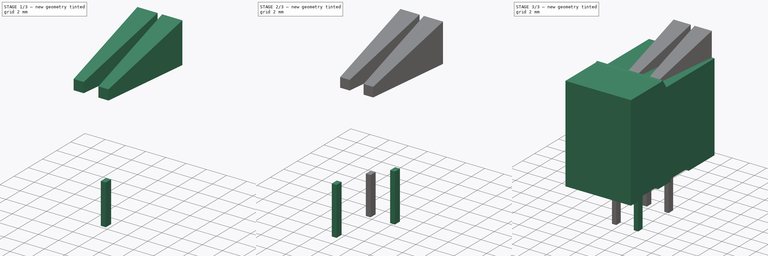
[diagram: build sequence overview — one tinted view per stage of 3, left to right]
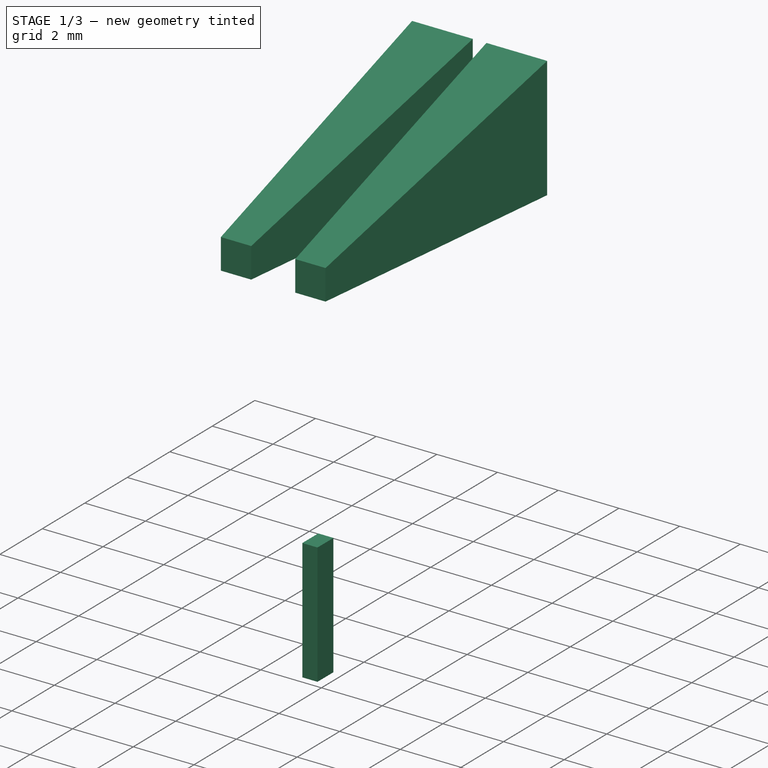
[diagram: stage 1 of 3 — iso view after this stage's code; geometry added in this stage tinted green]
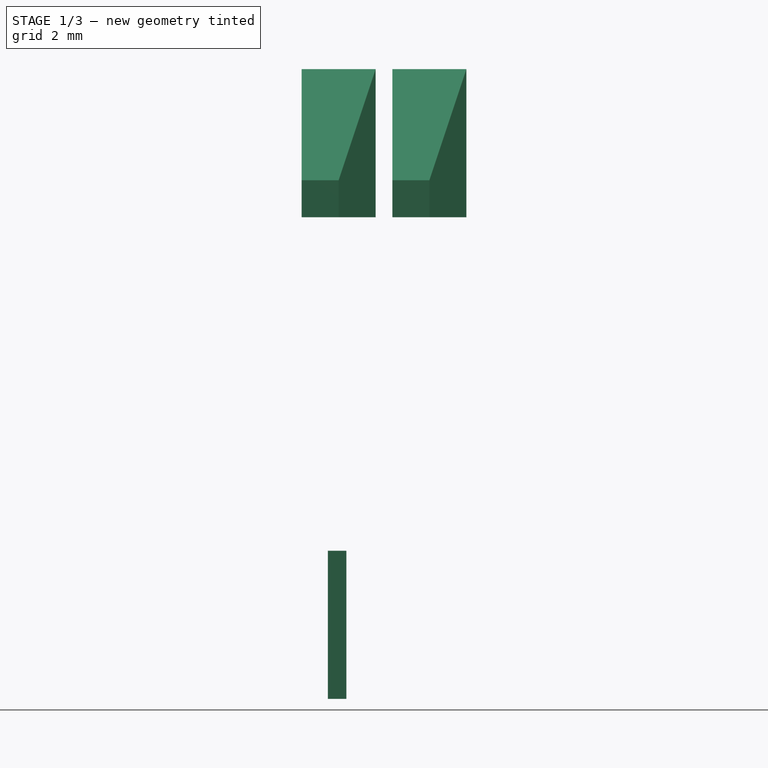
[diagram: stage 1 of 3 — front view after this stage's code; geometry added in this stage tinted green]
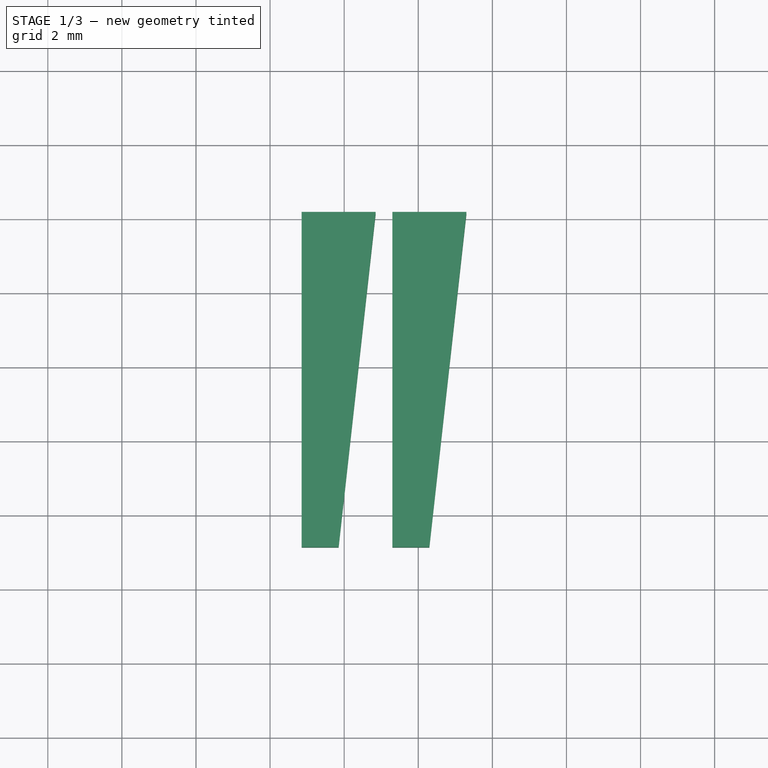
[diagram: stage 1 of 3 — top view after this stage's code; geometry added in this stage tinted green]
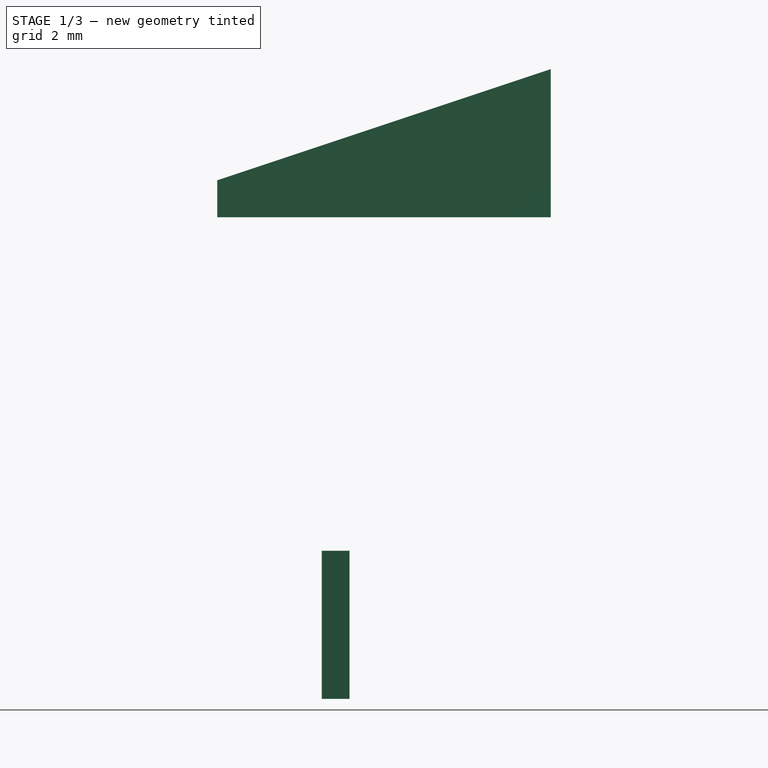
[diagram: stage 1 of 3 — right view after this stage's code; geometry added in this stage tinted green]
FCSTD DOCUMENT  (FreeCAD 0.19R24366 (Git))
Label: Ninigi_AC141R-02P-2.54
License: All rights reserved
LicenseURL: http://en.wikipedia.org/wiki/All_rights_reserved
objects: Part::Box×4, Sketcher::SketchObject×2, Part::Wedge×2, PartDesign::Pad×1, PartDesign::Pocket×1, PartDesign::Body×1
note: 13 computed .brp shape members not serialized (recipe doc carries the construction recipe); baked Part::Feature solids carry a one-line shape summary decoded from their .brp

FEATURE [Part::Box] Box003  label="Kocka003"
  AttacherType = Attacher::AttachEngine3D
  Height = 4
  Length = 0.5
  Placement = pos=(3.56,7.73,-4) rot=(0,0,1;0rad)
  Width = 0.75
FEATURE [Part::Wedge] Wedge  label="Ék"
  AttacherType = Attacher::AttachEngine3D
  Placement = pos=(7.3,13.91,9) rot=(0,0,1;3.14159rad)
  X2max = 2
  X2min = 1
  Xmax = 2
  Xmin = 0
  Ymax = 9
  Ymin = 0
  Z2max = 1
  Z2min = 0
  Zmax = 4
  Zmin = 0
FEATURE [Part::Wedge] Wedge001  label="Ék001"
  AttacherType = Attacher::AttachEngine3D
  Placement = pos=(4.85,13.91,9) rot=(0,0,1;3.14159rad)
  X2max = 2
  X2min = 1
  Xmax = 2
  Xmin = 0
  Ymax = 9
  Ymin = 0
  Z2max = 1
  Z2min = 0
  Zmax = 4
  Zmin = 0
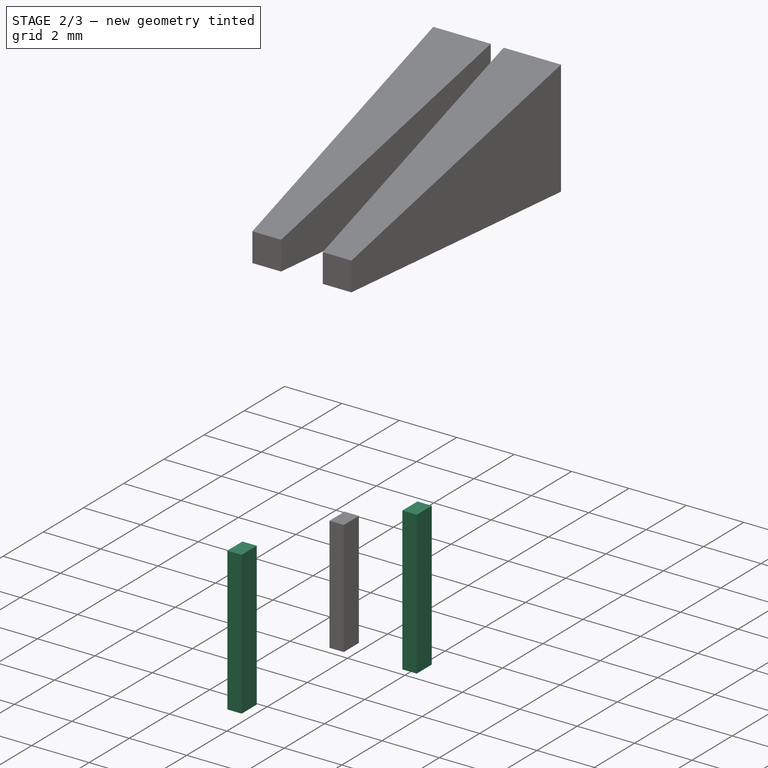
[diagram: stage 2 of 3 — iso view after this stage's code; geometry added in this stage tinted green]
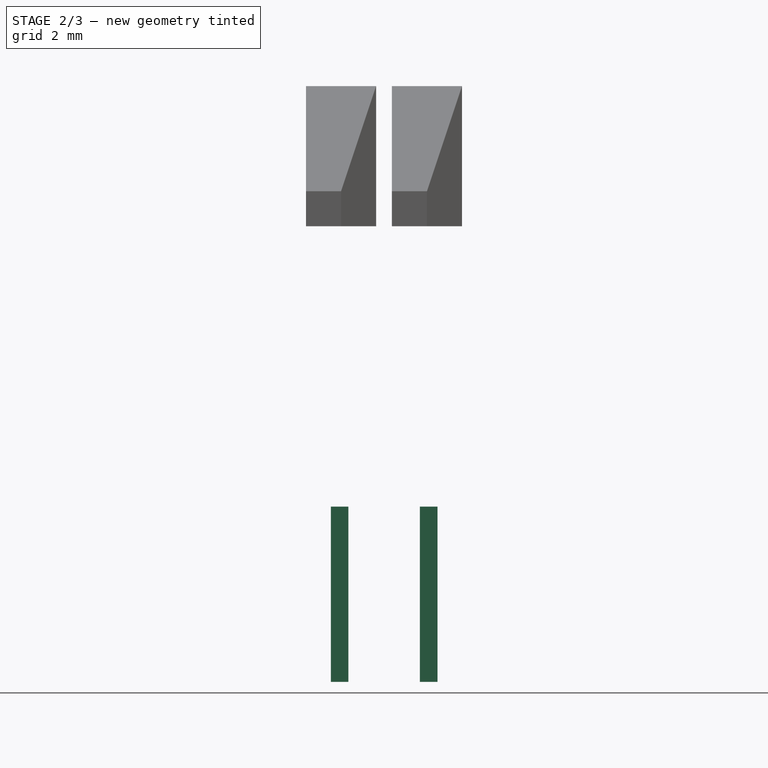
[diagram: stage 2 of 3 — front view after this stage's code; geometry added in this stage tinted green]
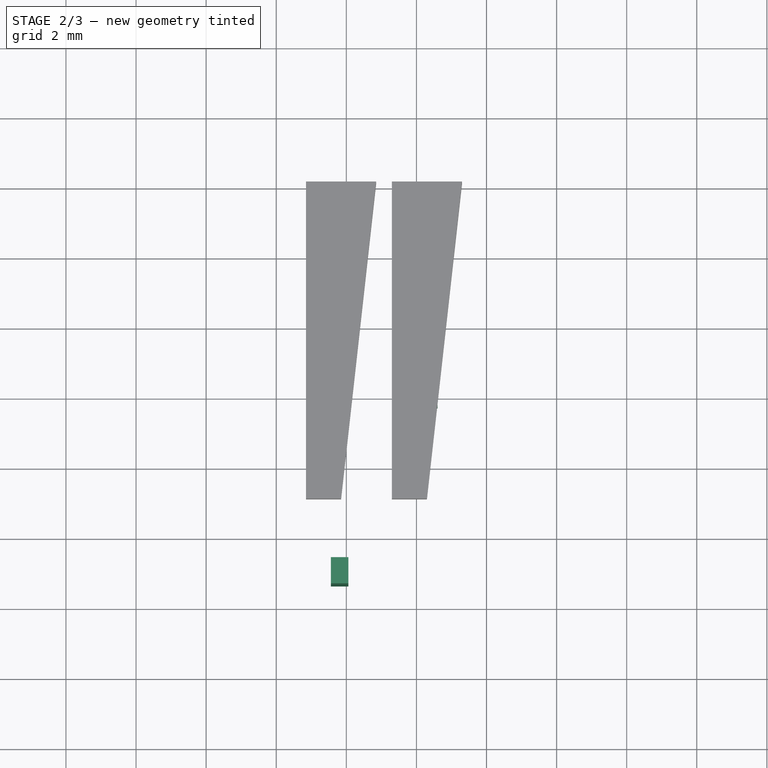
[diagram: stage 2 of 3 — top view after this stage's code; geometry added in this stage tinted green]
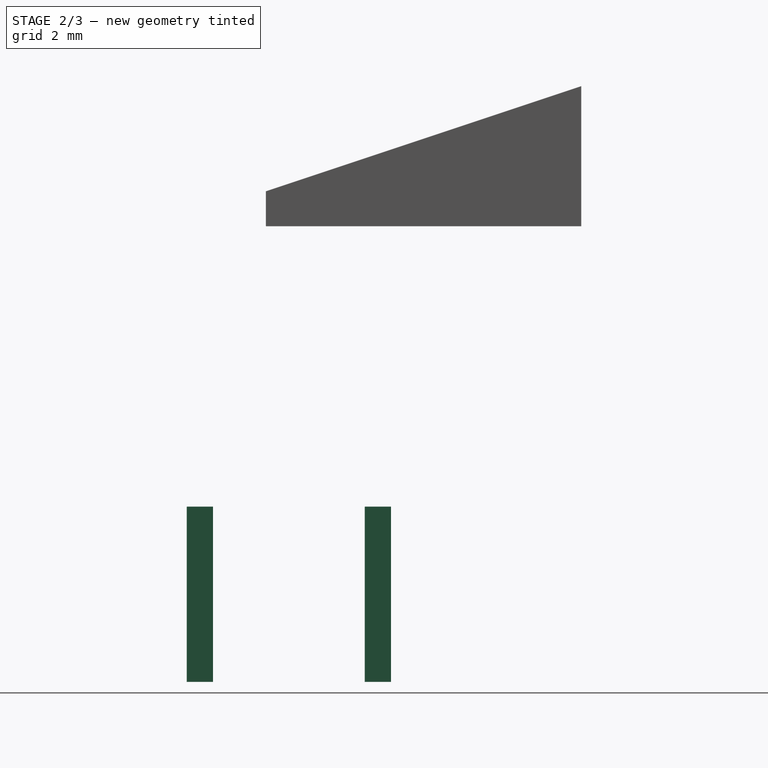
[diagram: stage 2 of 3 — right view after this stage's code; geometry added in this stage tinted green]
FEATURE [Part::Box] Box001  label="Kocka001"
  AttacherType = Attacher::AttachEngine3D
  Height = 5
  Length = 0.5
  Placement = pos=(3.56,2.65,-4) rot=(0,0,1;0rad)
  Width = 0.75
FEATURE [Part::Box] Box002  label="Kocka002"
  AttacherType = Attacher::AttachEngine3D
  Height = 5
  Length = 0.5
  Placement = pos=(6.1,7.73,-4) rot=(0,0,1;0rad)
  Width = 0.75
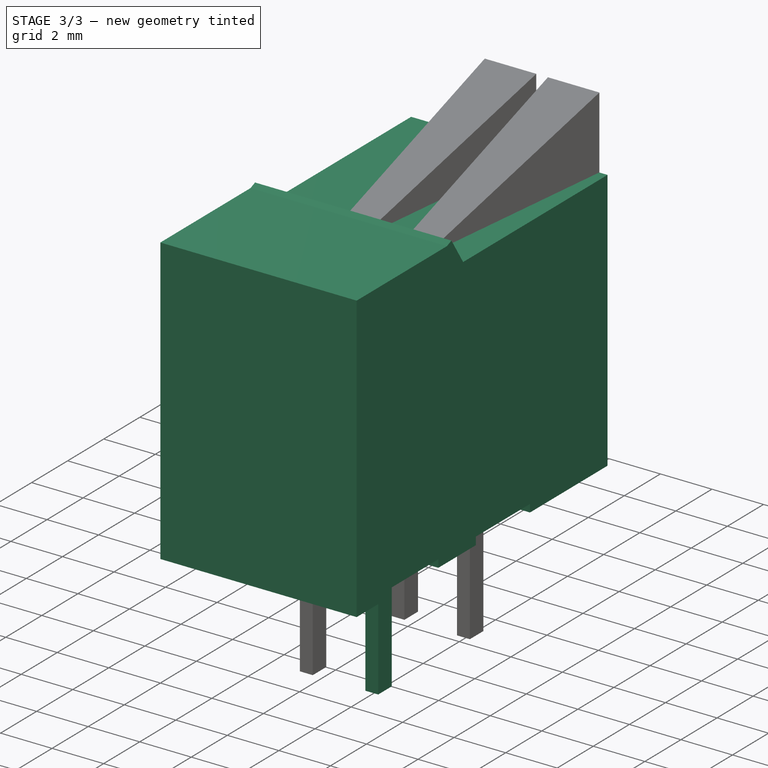
[diagram: stage 3 of 3 — iso view after this stage's code; geometry added in this stage tinted green]
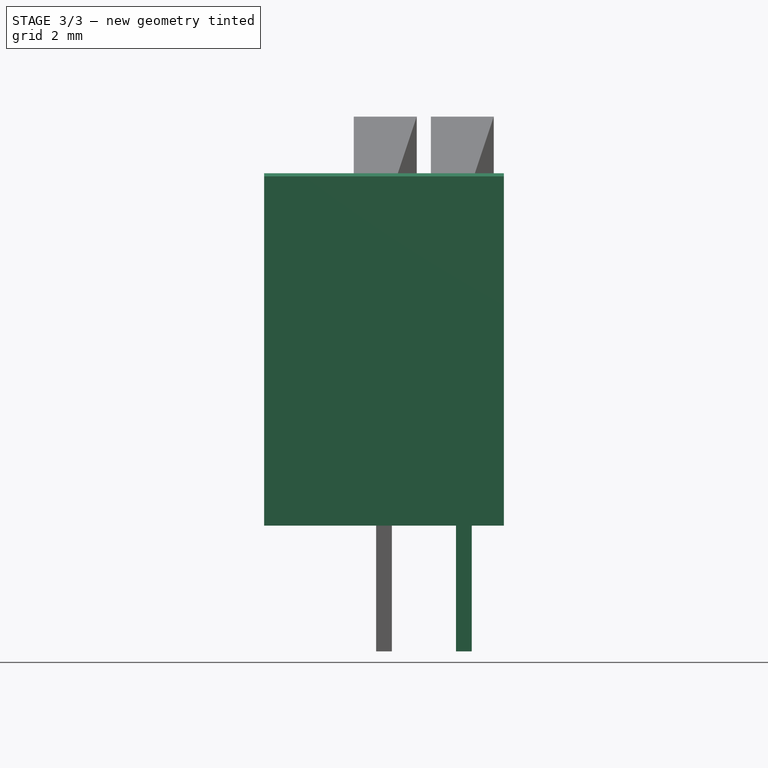
[diagram: stage 3 of 3 — front view after this stage's code; geometry added in this stage tinted green]
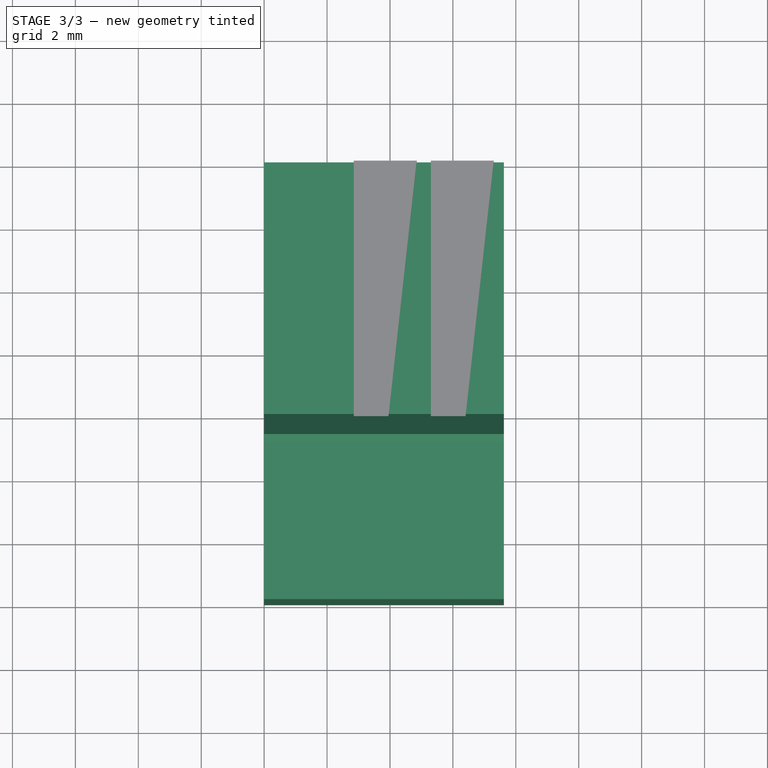
[diagram: stage 3 of 3 — top view after this stage's code; geometry added in this stage tinted green]
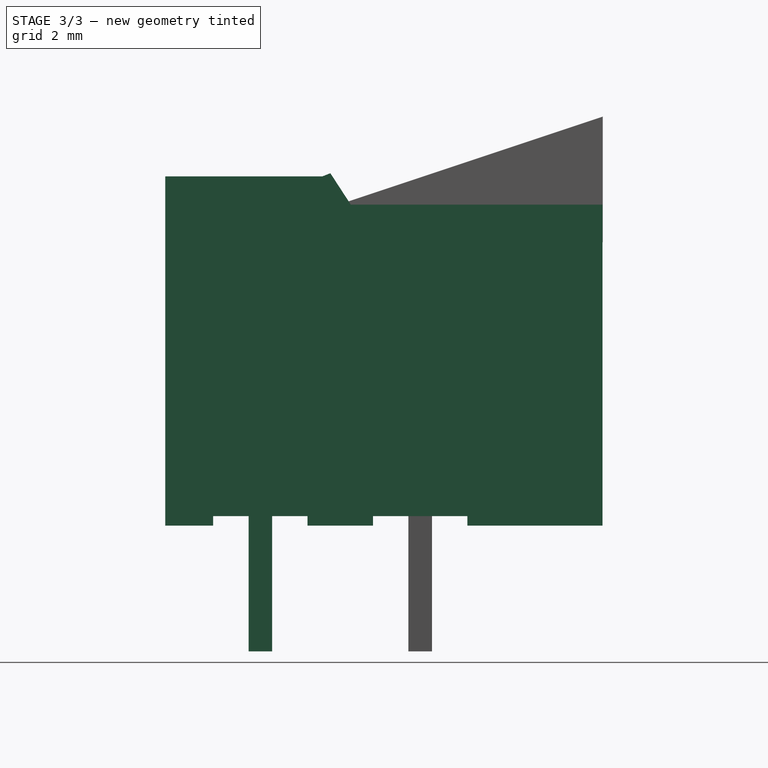
[diagram: stage 3 of 3 — right view after this stage's code; geometry added in this stage tinted green]
FEATURE [Sketcher::SketchObject] Sketch
  FullyConstrained = true
  MapMode = 5
  Placement = pos=(0,0,0) rot=(0.57735,0.57735,0.57735;2.0944rad)
  Support = -> [YZ_Plane]
  sketch-geometry (15):
    g0: LineSegment StartX=0 StartY=0 StartZ=0 EndX=0 EndY=11.1 EndZ=0
    g1: LineSegment StartX=0 StartY=11.1 StartZ=0 EndX=5 EndY=11.1 EndZ=0
    g2: LineSegment StartX=5 StartY=11.1 StartZ=0 EndX=5.25 EndY=11.2 EndZ=0
    g3: LineSegment StartX=5.25 StartY=11.2 StartZ=0 EndX=5.9 EndY=10.2 EndZ=0
    g4: LineSegment StartX=5.9 StartY=10.2 StartZ=0 EndX=13.9 EndY=10.2 EndZ=0
    g5: LineSegment StartX=13.9 StartY=10.2 StartZ=0 EndX=13.9 EndY=0 EndZ=0
    g6: LineSegment StartX=13.9 StartY=0 StartZ=0 EndX=9.605 EndY=0 EndZ=0
    g7: LineSegment StartX=9.605 StartY=0 StartZ=0 EndX=9.605 EndY=0.3 EndZ=0
    g8: LineSegment StartX=9.605 StartY=0.3 StartZ=0 EndX=6.605 EndY=0.3 EndZ=0
    g9: LineSegment StartX=6.605 StartY=0.3 StartZ=0 EndX=6.605 EndY=0 EndZ=0
    g10: LineSegment StartX=6.605 StartY=0 StartZ=0 EndX=4.525 EndY=0 EndZ=0
    g11: LineSegment StartX=4.525 StartY=0 StartZ=0 EndX=4.525 EndY=0.3 EndZ=0
    g12: LineSegment StartX=4.525 StartY=0.3 StartZ=0 EndX=1.525 EndY=0.3 EndZ=0
    g13: LineSegment StartX=1.525 StartY=0.3 StartZ=0 EndX=1.525 EndY=0 EndZ=0
    g14: LineSegment StartX=1.525 StartY=0 StartZ=0 EndX=0 EndY=0 EndZ=0
  constraints (44):
    c: Coincident(g-1,g0)
    c: PointOnObject(g0,g-2)
    c: Coincident(g0,g1)
    c: Horizontal(g1)
    c: Coincident(g1,g2)
    c: Coincident(g2,g3)
    c: Coincident(g3,g4)
    c: Horizontal(g4)
    c: Coincident(g4,g5)
    c: PointOnObject(g5,g-1)
    c: Vertical(g5)
    c: Coincident(g5,g6)
    c: PointOnObject(g6,g-1)
    c: Coincident(g6,g7)
    c: Coincident(g7,g8)
    c: Horizontal(g8)
    c: Coincident(g8,g9)
    c: PointOnObject(g9,g-1)
    c: Coincident(g9,g10)
    c: PointOnObject(g10,g-1)
    c: Coincident(g10,g11)
    c: Coincident(g11,g12)
    c: Horizontal(g12)
    c: Coincident(g12,g13)
    c: PointOnObject(g13,g-1)
    c: Coincident(g13,g14)
    c: Coincident(g14,g0)
    c: DistanceY(g0,g0) = 11.1
    c: DistanceY(g5,g5) = 10.2
    c: DistanceX(g1,g1) = 5
    c: DistanceX(g4,g4) = 8
    c: Distance(g0,g5) = 13.9
    c: Vertical(g7)
    c: Vertical(g9)
    c: Vertical(g11)
    c: Vertical(g13)
    c: Equal(g12,g8)
    c: Equal(g11,g7)
    c: DistanceX(g12,g12) = 3
    c: DistanceX(g14,g14) = 1.525
    c: DistanceX(g10,g10) = 2.08
    c: DistanceY(g13,g13) = 0.3
    c: Distance(g2,g1) = 0.1
    c: DistanceX(g1,g2) = 0.25
FEATURE [PartDesign::Pad] Pad
  Direction = (1,1,1)
  Length = 7.62
  Length2 = 100
  Placement = pos=(0,0,0) rot=(0.57735,0.57735,0.57735;2.0944rad)
  Profile = -> Sketch
  Type = 0
FEATURE [Sketcher::SketchObject] Sketch001
  ExternalGeometry = -> [Pad]
  FullyConstrained = true
  MapMode = 5
  Placement = pos=(6.1e-15,13.9,-3.1e-15) rot=(0.57735,0.57735,0.57735;4.18879rad)
  Support = -> [Pad]
  sketch-geometry (2):
    g0: Circle CenterX=7.2 CenterY=6.35 CenterZ=0 NormalX=0 NormalY=0 NormalZ=1 AngleXU=0 Radius=1.2
    g1: Circle CenterX=7.2 CenterY=3.81 CenterZ=0 NormalX=0 NormalY=0 NormalZ=1 AngleXU=0 Radius=1.2
  constraints (6):
    c: Equal(g0,g1)
    c: Diameter(g0) = 2.4
    c: Vertical(g0,g1)
    c: Distance(g0,g-2) = 7.2
    c: Distance(g0,g1) = 2.54
    c: Distance(g0,g-3) = 1.27
FEATURE [PartDesign::Pocket] Pocket
  BaseFeature = -> Pad
  Length = 13
  Length2 = 100
  Placement = pos=(0,0,0) rot=(0.57735,0.57735,0.57735;2.0944rad)
  Profile = -> Sketch001
  Type = 0
FEATURE [PartDesign::Body] Body
  Group = -> [Sketch,Pad,Sketch001,Pocket]
  Origin = -> Origin
  Tip = -> Pocket
FEATURE [Part::Box] Box  label="Kocka"
  AttacherType = Attacher::AttachEngine3D
  Height = 5
  Length = 0.5
  Placement = pos=(6.1,2.65,-4) rot=(0,0,1;0rad)
  Width = 0.75
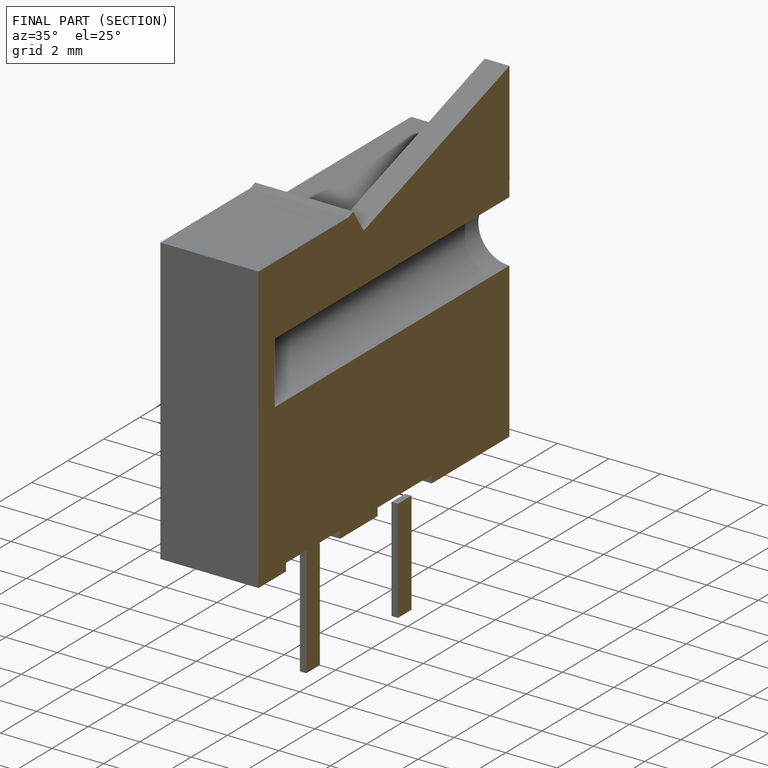
[diagram: finished part — half-section view (interior)]
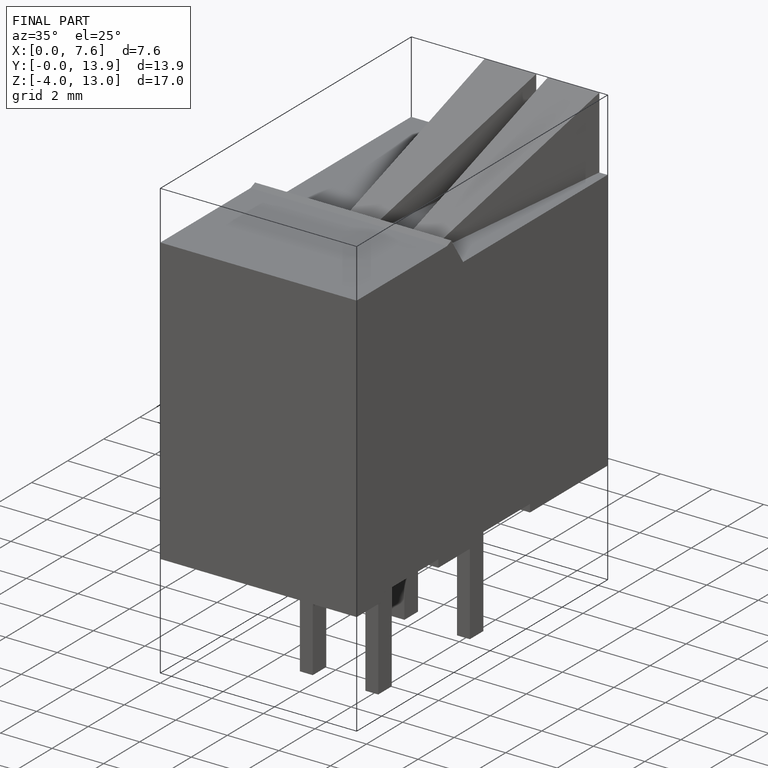
[diagram: finished part — iso view with bounding-box wireframe]
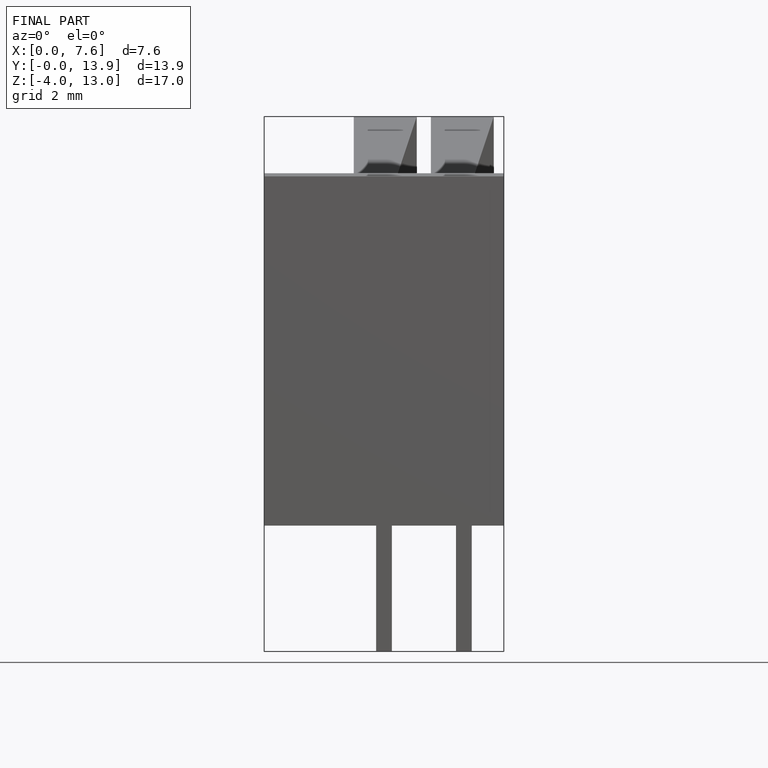
[diagram: finished part — front view with bounding-box wireframe]
